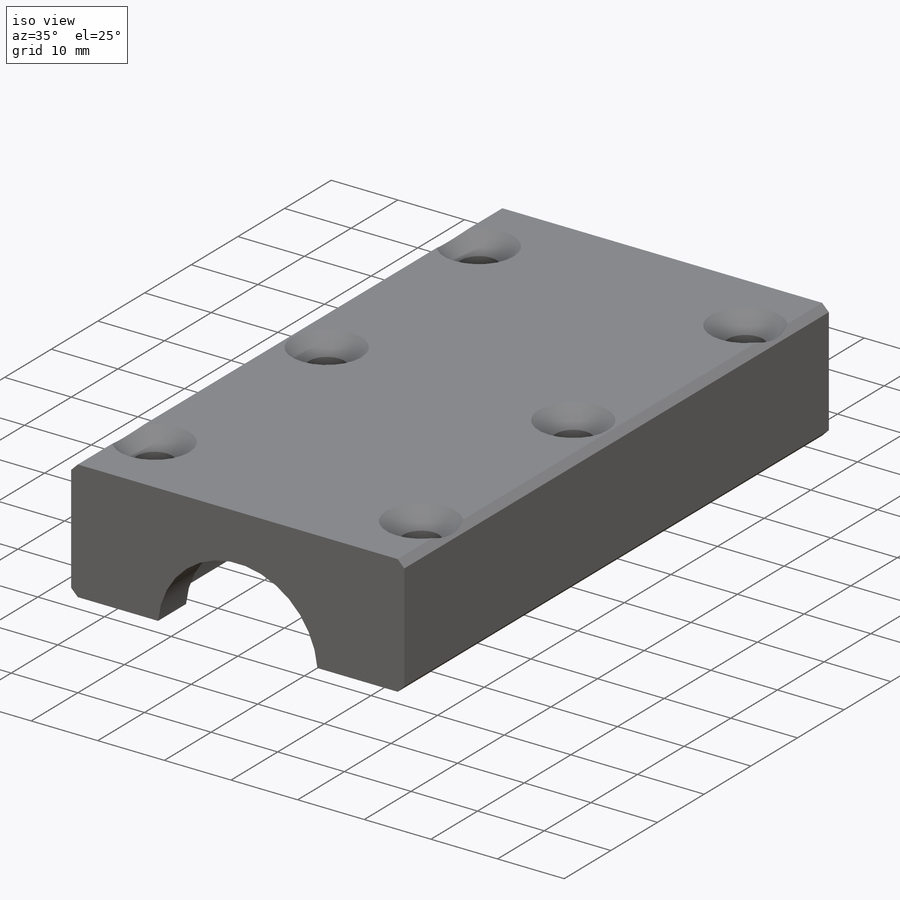
[diagram: iso view]
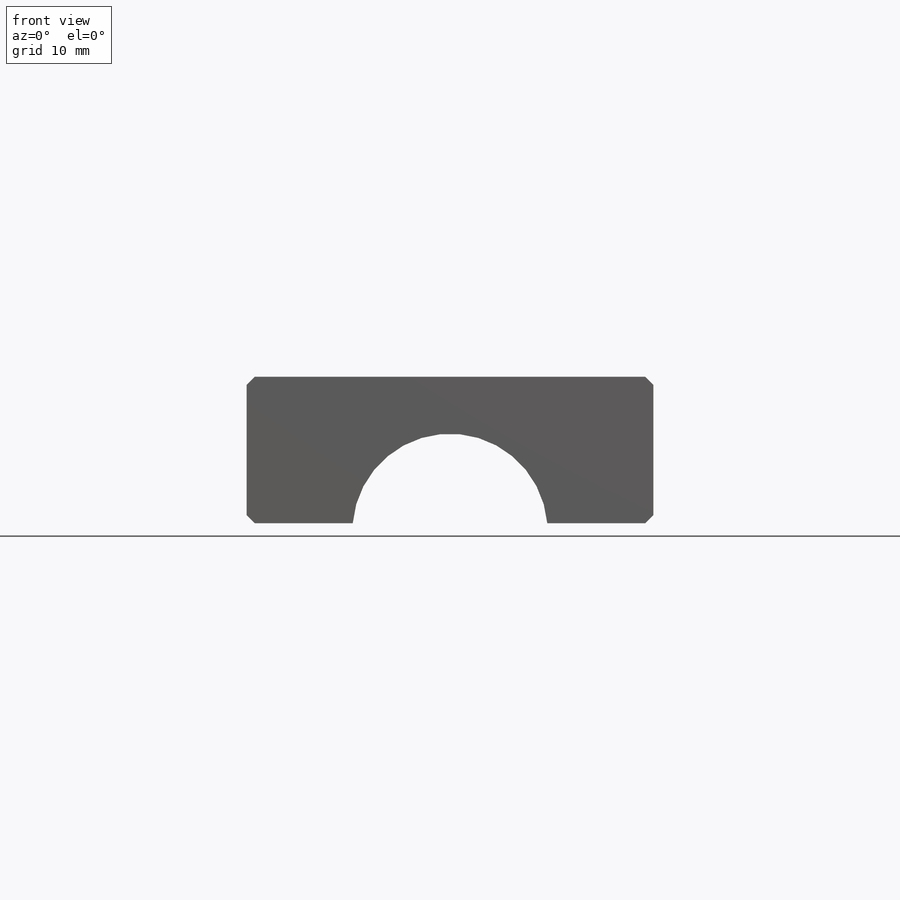
[diagram: front view]
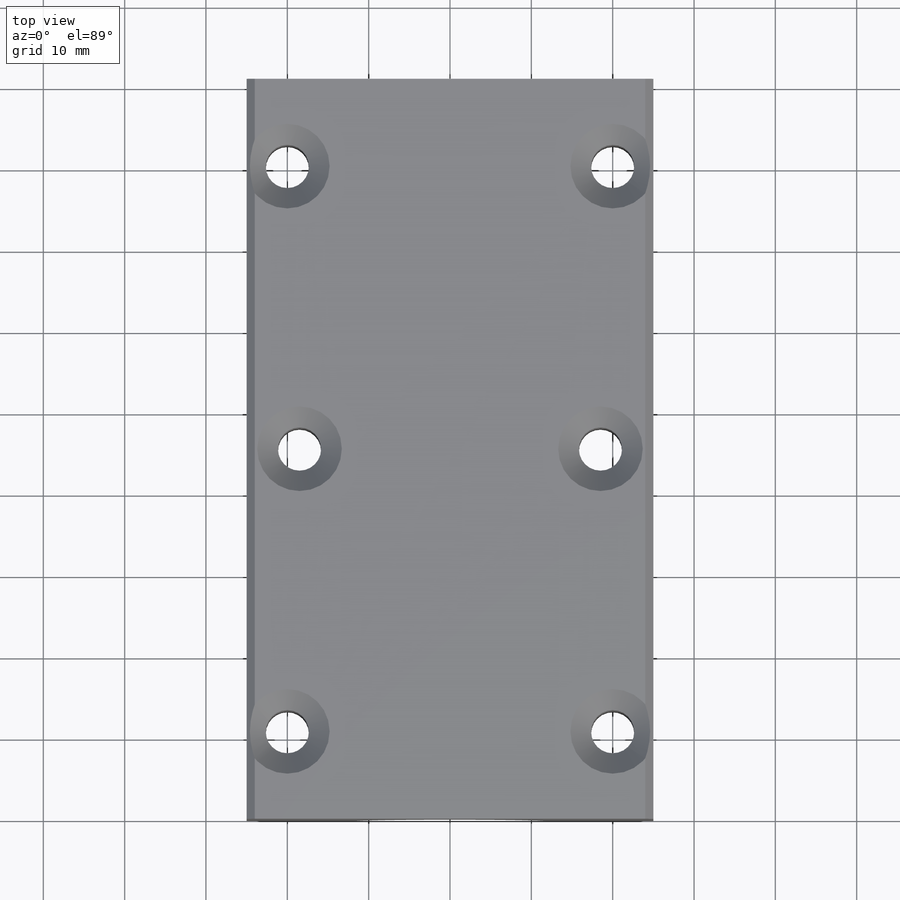
[diagram: top view]
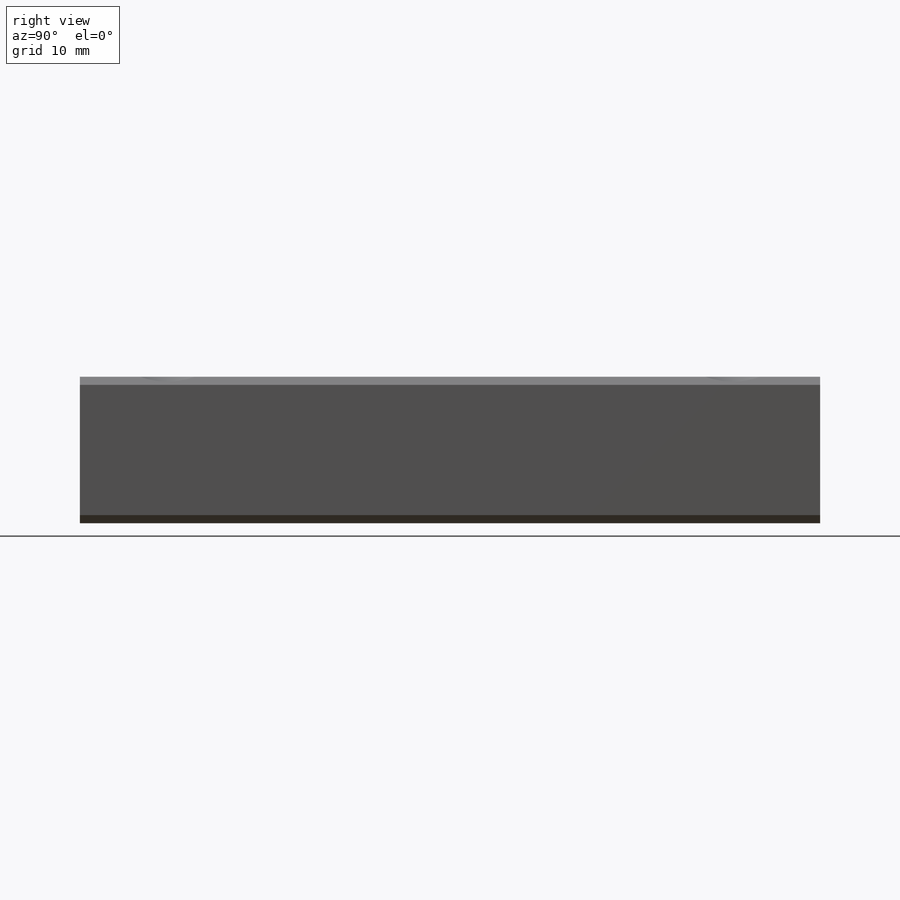
[diagram: right view]
SOLIDWORKS PART (.sldprt)
format: sldprt  version: not decoded by parser v0  size: 288,768 bytes
history: native  units: mm
features: sketch x5, plane x2, material x1, extrude x1, chamfer x1, cut_revolve x1, hole x1 (+13 scaffold rows collapsed)
feature tree (25):
  scaffold x13  (default folders/planes/origin — collapsed)
  material  "Латунь"
  sketch  "Sketch1"  dims[c1.D1=7.5mm c1.D2=12.0mm c2.D1=50.0mm c2.D3=18.0mm c2.D4=1.0mm]
  extrude  "Boss-Extrude1"  Depth=91mm
  chamfer  "Chamfer1"  Distance=1mm
  plane  "Plane1"  Offset=1mm
  sketch  "Sketch2"  dims[c1.D1=5.0mm c1.D2=18.5mm c1.D3=5.0mm c1.D4=6.0mm c1.D5=0.5mm c2.D1=6.0mm c2.D4=61.0mm c2.D3=51.0mm c3.D4=9.5mm]
  cut_revolve  "Cut-Revolve2"  Angle=360deg
  plane  "Plane2"
  sketch  "Sketch3"  dims[D1=40.0mm]
  hole  "Зенковка для  винта с плоской головкой M51"  Diameter=5.3mm Depth=18mm
  sketch  "Sketch7"
  sketch  "Sketch6"  dims[hole-wizard template sketch: 55 standard entries collapsed; hole parameters kept: c17.Thru Hole Depth=18.0mm c17.Near C'Sink Dia.=10.4mm c17.D4=~3.666174mm c17.Near C'Sink Angle=90.0deg]
decode coverage: 8 of 9 modeling features carry decoded parameters
note: ~ marks probable driven/reference dimensions
note: suppression state not decoded; provenance and decode notes live in map.json
